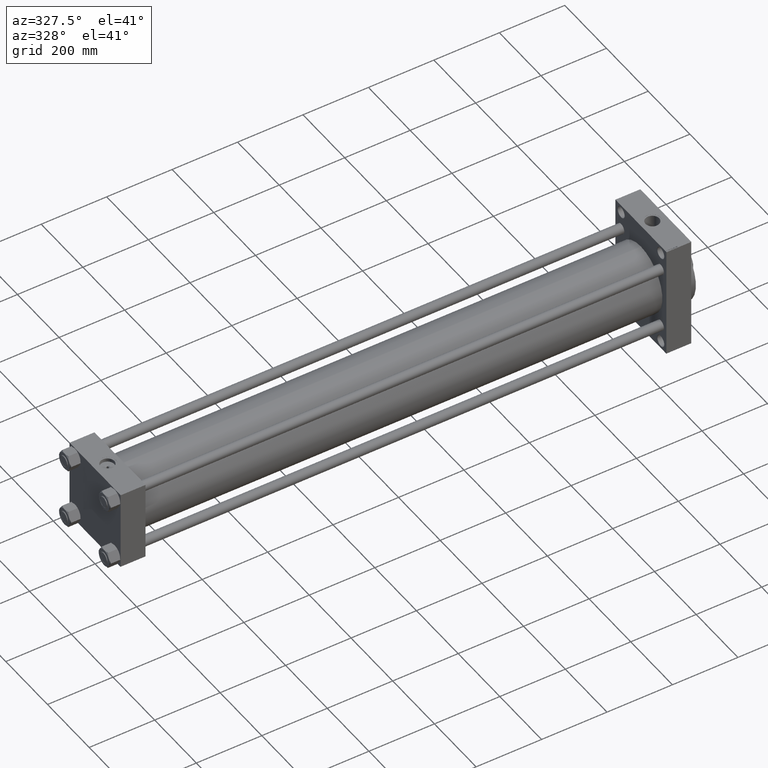
[diagram: clean part render]
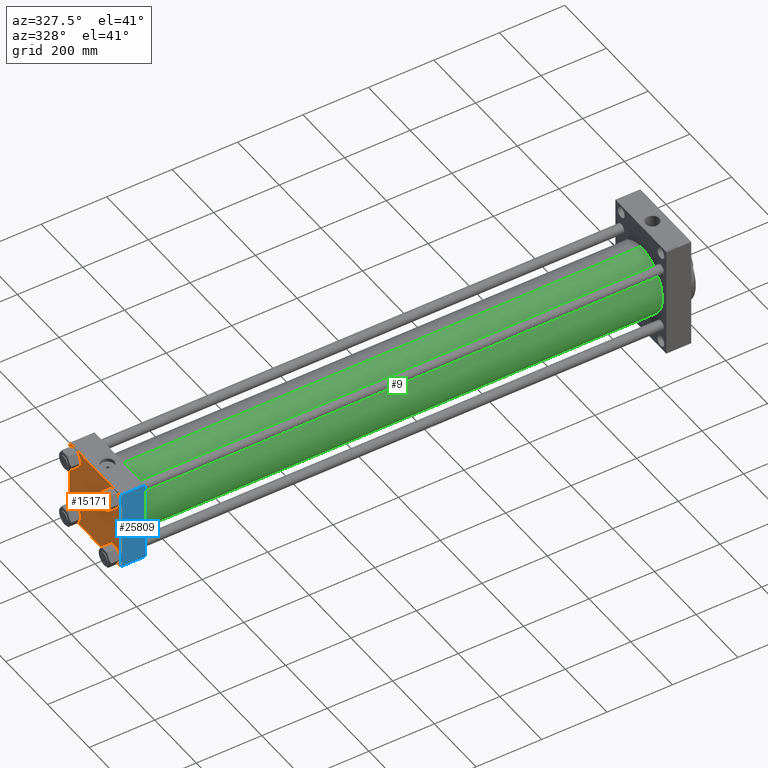
[diagram: same view with three faces highlighted in distinct colors, each labeled with its STEP entity id]
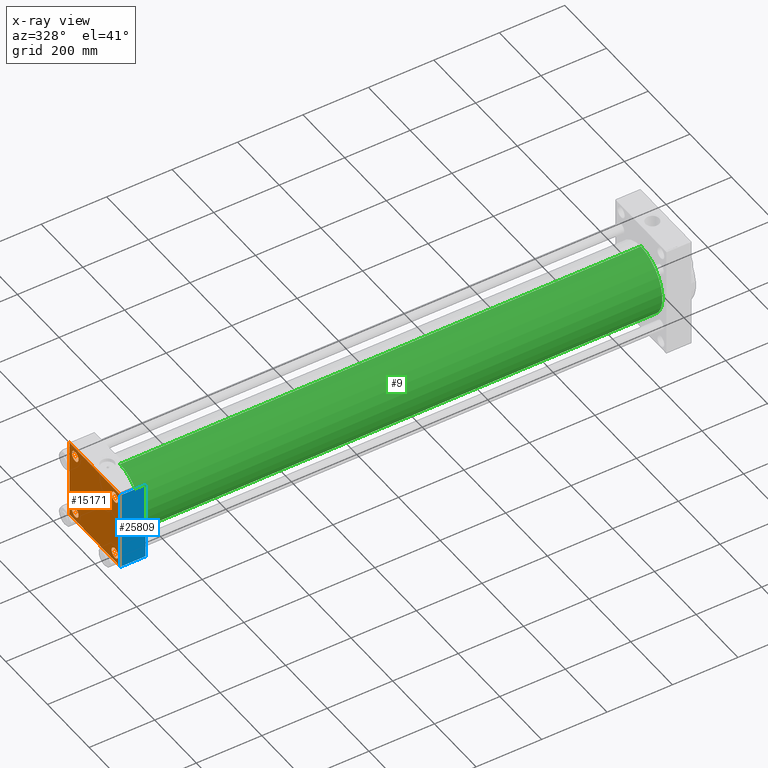
[diagram: x-ray of the same camera — body ghosted, the three highlighted faces saturated]
A machine part, auxiliary view with three faces highlighted in distinct colors.
The next image is the same camera in x-ray (body ghosted, the three faces saturated) — at least one of them is partly hidden behind the body in this view.
Their STEP definitions:

[orange] entity #15171 — the highlighted planar face has unit normal (-1, 0, 0).
#151 = LINE ( 'NONE', #36749, #24370 ) ;
#465 = LINE ( 'NONE', #40938, #46264 ) ;
#717 = VERTEX_POINT ( 'NONE', #37382 ) ;
#1149 = VERTEX_POINT ( 'NONE', #42062 ) ;
#1669 = CARTESIAN_POINT ( 'NONE',  ( 0.000000000000000000, -95.09999999999996589, -110.6000000000000654 ) ) ;
#2927 = VECTOR ( 'NONE', #7510, 1000.000000000000114 ) ;
#3022 = EDGE_CURVE ( 'NONE', #717, #14227, #25157, .T. ) ;
#3164 = CIRCLE ( 'NONE', #46230, 15.50000000000001421 ) ;
#4239 = CARTESIAN_POINT ( 'NONE',  ( 0.000000000000000000, 122.0000000000000568, -122.5000000000000000 ) ) ;
#4588 = EDGE_CURVE ( 'NONE', #46541, #45904, #25804, .T. ) ;
#4685 = AXIS2_PLACEMENT_3D ( 'NONE', #45766, #5322, #27925 ) ;
#5322 = DIRECTION ( 'NONE',  ( -1.000000000000000000, 0.000000000000000000, 0.000000000000000000 ) ) ;
#6135 = CARTESIAN_POINT ( 'NONE',  ( 0.000000000000000000, -95.09999999999996589, -95.10000000000005116 ) ) ;
#6230 = ORIENTED_EDGE ( 'NONE', *, *, #45724, .F. ) ;
#6291 = EDGE_LOOP ( 'NONE', ( #9970, #26909 ) ) ;
#6487 = DIRECTION ( 'NONE',  ( 1.000000000000000000, -0.000000000000000000, -0.000000000000000000 ) ) ;
#6859 = EDGE_CURVE ( 'NONE', #22710, #46541, #10113, .T. ) ;
#6986 = CARTESIAN_POINT ( 'NONE',  ( 0.000000000000000000, 122.0000000000000568, 122.5000000000000284 ) ) ;
#7070 = AXIS2_PLACEMENT_3D ( 'NONE', #29288, #11221, #33385 ) ;
#7156 = AXIS2_PLACEMENT_3D ( 'NONE', #6135, #34550, #20332 ) ;
#7162 = VERTEX_POINT ( 'NONE', #38197 ) ;
#7436 = CARTESIAN_POINT ( 'NONE',  ( 0.000000000000000000, 122.2499999999932641, 122.2500000000068496 ) ) ;
#7458 = CARTESIAN_POINT ( 'NONE',  ( 0.000000000000000000, 95.09999999999999432, 95.10000000000002274 ) ) ;
#7510 = DIRECTION ( 'NONE',  ( 0.000000000000000000, -0.7071067811865474617, 0.7071067811865474617 ) ) ;
#7914 = EDGE_LOOP ( 'NONE', ( #25883, #21727, #30379, #33745, #19858, #39428, #6230, #34213 ) ) ;
#8219 = CARTESIAN_POINT ( 'NONE',  ( 0.000000000000000000, -122.0000000000000000, -122.5000000000000568 ) ) ;
#9378 = DIRECTION ( 'NONE',  ( 1.000000000000000000, -0.000000000000000000, -0.000000000000000000 ) ) ;
#9612 = CARTESIAN_POINT ( 'NONE',  ( 0.000000000000000000, 95.09999999999999432, -95.10000000000002274 ) ) ;
#9931 = VECTOR ( 'NONE', #32720, 1000.000000000000000 ) ;
#9960 = CARTESIAN_POINT ( 'NONE',  ( 0.000000000000000000, 95.09999999999999432, 110.6000000000000369 ) ) ;
#9970 = ORIENTED_EDGE ( 'NONE', *, *, #13606, .T. ) ;
#10113 = LINE ( 'NONE', #13474, #36801 ) ;
#10138 = EDGE_LOOP ( 'NONE', ( #34825, #44495 ) ) ;
#10932 = CARTESIAN_POINT ( 'NONE',  ( 0.000000000000000000, -95.09999999999996589, -79.60000000000003695 ) ) ;
#11221 = DIRECTION ( 'NONE',  ( 1.000000000000000000, -0.000000000000000000, -0.000000000000000000 ) ) ;
#12085 = DIRECTION ( 'NONE',  ( 0.000000000000000000, 0.000000000000000000, -1.000000000000000000 ) ) ;
#12649 = CARTESIAN_POINT ( 'NONE',  ( 0.000000000000000000, 122.5000000000000568, 122.0000000000000853 ) ) ;
#13261 = EDGE_CURVE ( 'NONE', #37899, #44663, #3164, .T. ) ;
#13383 = DIRECTION ( 'NONE',  ( 0.000000000000000000, 0.000000000000000000, 1.000000000000000000 ) ) ;
#13474 = CARTESIAN_POINT ( 'NONE',  ( 0.000000000000000000, 122.5000000000000568, -122.5000000000000000 ) ) ;
#13606 = EDGE_CURVE ( 'NONE', #44663, #37899, #31547, .T. ) ;
#13742 = VECTOR ( 'NONE', #42436, 1000.000000000000114 ) ;
#13858 = EDGE_CURVE ( 'NONE', #26291, #22710, #18382, .T. ) ;
#13876 = AXIS2_PLACEMENT_3D ( 'NONE', #39626, #46849, #13383 ) ;
#14010 = CARTESIAN_POINT ( 'NONE',  ( 0.000000000000000000, -95.09999999999996589, 79.60000000000003695 ) ) ;
#14227 = VERTEX_POINT ( 'NONE', #14010 ) ;
#14672 = ORIENTED_EDGE ( 'NONE', *, *, #34462, .T. ) ;
#14676 = DIRECTION ( 'NONE',  ( 0.000000000000000000, -1.132880637372608493E-16, -1.000000000000000000 ) ) ;
#15171 = ADVANCED_FACE ( 'NONE', ( #23853, #34451, #34917, #31080, #24090 ), #30606, .T. ) ;
#15686 = LINE ( 'NONE', #23871, #26246 ) ;
#16691 = AXIS2_PLACEMENT_3D ( 'NONE', #32947, #29338, #17776 ) ;
#17776 = DIRECTION ( 'NONE',  ( 0.000000000000000000, 0.000000000000000000, 1.000000000000000000 ) ) ;
#17896 = CIRCLE ( 'NONE', #7156, 15.50000000000001421 ) ;
#18090 = EDGE_CURVE ( 'NONE', #36911, #40891, #17896, .T. ) ;
#18366 = ORIENTED_EDGE ( 'NONE', *, *, #18090, .T. ) ;
#18382 = LINE ( 'NONE', #46829, #23848 ) ;
#18921 = CARTESIAN_POINT ( 'NONE',  ( 0.000000000000000000, -122.5000000000000000, -122.0000000000000568 ) ) ;
#18975 = LINE ( 'NONE', #7436, #9931 ) ;
#19858 = ORIENTED_EDGE ( 'NONE', *, *, #29473, .F. ) ;
#20332 = DIRECTION ( 'NONE',  ( 0.000000000000000000, 0.000000000000000000, 1.000000000000000000 ) ) ;
#21056 = VERTEX_POINT ( 'NONE', #6986 ) ;
#21727 = ORIENTED_EDGE ( 'NONE', *, *, #13858, .T. ) ;
#21870 = AXIS2_PLACEMENT_3D ( 'NONE', #7458, #40450, #32516 ) ;
#22356 = EDGE_CURVE ( 'NONE', #31576, #1149, #43380, .T. ) ;
#22710 = VERTEX_POINT ( 'NONE', #4239 ) ;
#23848 = VECTOR ( 'NONE', #32838, 1000.000000000000114 ) ;
#23853 = FACE_BOUND ( 'NONE', #10138, .T. ) ;
#23871 = CARTESIAN_POINT ( 'NONE',  ( 0.000000000000000000, 122.5000000000000568, 122.5000000000000284 ) ) ;
#24090 = FACE_OUTER_BOUND ( 'NONE', #7914, .T. ) ;
#24185 = DIRECTION ( 'NONE',  ( 1.000000000000000000, -0.000000000000000000, -0.000000000000000000 ) ) ;
#24218 = EDGE_CURVE ( 'NONE', #21056, #36769, #18975, .T. ) ;
#24370 = VECTOR ( 'NONE', #40371, 1000.000000000000000 ) ;
#24791 = DIRECTION ( 'NONE',  ( 0.000000000000000000, -1.000000000000000000, -2.265761274745216987E-16 ) ) ;
#25063 = CARTESIAN_POINT ( 'NONE',  ( 0.000000000000000000, -122.2499999999932641, 122.2500000000068212 ) ) ;
#25157 = CIRCLE ( 'NONE', #16691, 15.50000000000001421 ) ;
#25804 = LINE ( 'NONE', #40502, #2927 ) ;
#25883 = ORIENTED_EDGE ( 'NONE', *, *, #29285, .T. ) ;
#26246 = VECTOR ( 'NONE', #12085, 1000.000000000000000 ) ;
#26291 = VERTEX_POINT ( 'NONE', #33148 ) ;
#26909 = ORIENTED_EDGE ( 'NONE', *, *, #13261, .T. ) ;
#27444 = EDGE_CURVE ( 'NONE', #40891, #36911, #28485, .T. ) ;
#27903 = DIRECTION ( 'NONE',  ( 0.000000000000000000, 0.000000000000000000, 1.000000000000000000 ) ) ;
#27925 = DIRECTION ( 'NONE',  ( 0.000000000000000000, 0.000000000000000000, 1.000000000000000000 ) ) ;
#28485 = CIRCLE ( 'NONE', #13876, 15.50000000000001421 ) ;
#29285 = EDGE_CURVE ( 'NONE', #36769, #26291, #15686, .T. ) ;
#29288 = CARTESIAN_POINT ( 'NONE',  ( 0.000000000000000000, -95.09999999999996589, 95.10000000000005116 ) ) ;
#29338 = DIRECTION ( 'NONE',  ( 1.000000000000000000, -0.000000000000000000, -0.000000000000000000 ) ) ;
#29473 = EDGE_CURVE ( 'NONE', #31576, #45904, #465, .T. ) ;
#30108 = CARTESIAN_POINT ( 'NONE',  ( 0.000000000000000000, 95.09999999999999432, -79.60000000000000853 ) ) ;
#30379 = ORIENTED_EDGE ( 'NONE', *, *, #6859, .T. ) ;
#30606 = PLANE ( 'NONE',  #4685 ) ;
#30898 = CIRCLE ( 'NONE', #7070, 15.50000000000001421 ) ;
#31080 = FACE_BOUND ( 'NONE', #41960, .T. ) ;
#31547 = CIRCLE ( 'NONE', #43180, 15.50000000000001421 ) ;
#31576 = VERTEX_POINT ( 'NONE', #47169 ) ;
#31772 = DIRECTION ( 'NONE',  ( 0.000000000000000000, 0.000000000000000000, 1.000000000000000000 ) ) ;
#32516 = DIRECTION ( 'NONE',  ( 0.000000000000000000, 0.000000000000000000, 1.000000000000000000 ) ) ;
#32615 = CARTESIAN_POINT ( 'NONE',  ( 0.000000000000000000, 95.09999999999999432, -110.6000000000000369 ) ) ;
#32720 = DIRECTION ( 'NONE',  ( 0.000000000000000000, 0.7071067811865868746, -0.7071067811865081598 ) ) ;
#32838 = DIRECTION ( 'NONE',  ( -0.000000000000000000, -0.7071067811865474617, -0.7071067811865474617 ) ) ;
#32947 = CARTESIAN_POINT ( 'NONE',  ( 0.000000000000000000, -95.09999999999996589, 95.10000000000005116 ) ) ;
#33148 = CARTESIAN_POINT ( 'NONE',  ( 0.000000000000000000, 122.5000000000000568, -121.9999999999999432 ) ) ;
#33385 = DIRECTION ( 'NONE',  ( 0.000000000000000000, 0.000000000000000000, 1.000000000000000000 ) ) ;
#33662 = EDGE_CURVE ( 'NONE', #14227, #717, #30898, .T. ) ;
#33745 = ORIENTED_EDGE ( 'NONE', *, *, #4588, .T. ) ;
#34213 = ORIENTED_EDGE ( 'NONE', *, *, #24218, .T. ) ;
#34451 = FACE_BOUND ( 'NONE', #35387, .T. ) ;
#34462 = EDGE_CURVE ( 'NONE', #44075, #7162, #41701, .T. ) ;
#34550 = DIRECTION ( 'NONE',  ( 1.000000000000000000, -0.000000000000000000, -0.000000000000000000 ) ) ;
#34825 = ORIENTED_EDGE ( 'NONE', *, *, #3022, .T. ) ;
#34917 = FACE_BOUND ( 'NONE', #6291, .T. ) ;
#35387 = EDGE_LOOP ( 'NONE', ( #18366, #44018 ) ) ;
#36749 = CARTESIAN_POINT ( 'NONE',  ( 0.000000000000000000, 122.5000000000000568, 122.5000000000000284 ) ) ;
#36769 = VERTEX_POINT ( 'NONE', #12649 ) ;
#36801 = VECTOR ( 'NONE', #24791, 1000.000000000000000 ) ;
#36911 = VERTEX_POINT ( 'NONE', #10932 ) ;
#37382 = CARTESIAN_POINT ( 'NONE',  ( 0.000000000000000000, -95.09999999999996589, 110.6000000000000654 ) ) ;
#37899 = VERTEX_POINT ( 'NONE', #32615 ) ;
#38197 = CARTESIAN_POINT ( 'NONE',  ( 0.000000000000000000, 95.09999999999999432, 79.60000000000000853 ) ) ;
#39428 = ORIENTED_EDGE ( 'NONE', *, *, #22356, .T. ) ;
#39481 = CARTESIAN_POINT ( 'NONE',  ( 0.000000000000000000, 95.09999999999999432, 95.10000000000002274 ) ) ;
#39626 = CARTESIAN_POINT ( 'NONE',  ( 0.000000000000000000, -95.09999999999996589, -95.10000000000005116 ) ) ;
#40010 = EDGE_CURVE ( 'NONE', #7162, #44075, #41108, .T. ) ;
#40356 = ORIENTED_EDGE ( 'NONE', *, *, #40010, .T. ) ;
#40371 = DIRECTION ( 'NONE',  ( 0.000000000000000000, -1.000000000000000000, -1.132880637372608740E-16 ) ) ;
#40450 = DIRECTION ( 'NONE',  ( 1.000000000000000000, -0.000000000000000000, -0.000000000000000000 ) ) ;
#40502 = CARTESIAN_POINT ( 'NONE',  ( 0.000000000000000000, -122.2500000000000142, -122.2500000000000142 ) ) ;
#40891 = VERTEX_POINT ( 'NONE', #1669 ) ;
#40938 = CARTESIAN_POINT ( 'NONE',  ( 0.000000000000000000, -122.4999999999999716, 122.5000000000000000 ) ) ;
#41108 = CIRCLE ( 'NONE', #21870, 15.50000000000001421 ) ;
#41701 = CIRCLE ( 'NONE', #41737, 15.50000000000001421 ) ;
#41737 = AXIS2_PLACEMENT_3D ( 'NONE', #39481, #6487, #27903 ) ;
#41960 = EDGE_LOOP ( 'NONE', ( #14672, #40356 ) ) ;
#42062 = CARTESIAN_POINT ( 'NONE',  ( 0.000000000000000000, -121.9999999999999716, 122.5000000000000000 ) ) ;
#42436 = DIRECTION ( 'NONE',  ( -0.000000000000000000, 0.7071067811865867636, 0.7071067811865082708 ) ) ;
#43180 = AXIS2_PLACEMENT_3D ( 'NONE', #9612, #9378, #31772 ) ;
#43380 = LINE ( 'NONE', #25063, #13742 ) ;
#44018 = ORIENTED_EDGE ( 'NONE', *, *, #27444, .T. ) ;
#44075 = VERTEX_POINT ( 'NONE', #9960 ) ;
#44495 = ORIENTED_EDGE ( 'NONE', *, *, #33662, .T. ) ;
#44663 = VERTEX_POINT ( 'NONE', #30108 ) ;
#45724 = EDGE_CURVE ( 'NONE', #21056, #1149, #151, .T. ) ;
#45766 = CARTESIAN_POINT ( 'NONE',  ( 0.000000000000000000, 0.000000000000000000, 0.000000000000000000 ) ) ;
#45904 = VERTEX_POINT ( 'NONE', #18921 ) ;
#46098 = CARTESIAN_POINT ( 'NONE',  ( 0.000000000000000000, 95.09999999999999432, -95.10000000000002274 ) ) ;
#46230 = AXIS2_PLACEMENT_3D ( 'NONE', #46098, #24185, #46346 ) ;
#46264 = VECTOR ( 'NONE', #14676, 1000.000000000000000 ) ;
#46346 = DIRECTION ( 'NONE',  ( 0.000000000000000000, 0.000000000000000000, 1.000000000000000000 ) ) ;
#46541 = VERTEX_POINT ( 'NONE', #8219 ) ;
#46829 = CARTESIAN_POINT ( 'NONE',  ( 0.000000000000000000, 122.2500000000000142, -122.2500000000000142 ) ) ;
#46849 = DIRECTION ( 'NONE',  ( 1.000000000000000000, -0.000000000000000000, -0.000000000000000000 ) ) ;
#47169 = CARTESIAN_POINT ( 'NONE',  ( 0.000000000000000000, -122.4999999999999716, 122.0000000000001137 ) ) ;

[blue] entity #25809 — the highlighted planar face has unit normal (0, 1, -0).
#465 = LINE ( 'NONE', #40938, #46264 ) ;
#1704 = CARTESIAN_POINT ( 'NONE',  ( 76.00000000000000000, -122.4999999999999716, 122.5000000000000000 ) ) ;
#5509 = CARTESIAN_POINT ( 'NONE',  ( 76.00000000000000000, -122.4999999999999716, 122.0000000000001137 ) ) ;
#8054 = EDGE_CURVE ( 'NONE', #45963, #31576, #8868, .T. ) ;
#8077 = ORIENTED_EDGE ( 'NONE', *, *, #35386, .T. ) ;
#8694 = DIRECTION ( 'NONE',  ( 0.000000000000000000, 1.132880637372608493E-16, 1.000000000000000000 ) ) ;
#8868 = LINE ( 'NONE', #5509, #46093 ) ;
#9394 = DIRECTION ( 'NONE',  ( 0.000000000000000000, 1.000000000000000000, -1.132880637372608493E-16 ) ) ;
#10446 = EDGE_LOOP ( 'NONE', ( #37269, #8077, #17012, #31173 ) ) ;
#12302 = AXIS2_PLACEMENT_3D ( 'NONE', #1704, #9394, #8694 ) ;
#14058 = VERTEX_POINT ( 'NONE', #34967 ) ;
#14676 = DIRECTION ( 'NONE',  ( 0.000000000000000000, -1.132880637372608493E-16, -1.000000000000000000 ) ) ;
#15577 = VECTOR ( 'NONE', #26925, 1000.000000000000000 ) ;
#17012 = ORIENTED_EDGE ( 'NONE', *, *, #31497, .F. ) ;
#18921 = CARTESIAN_POINT ( 'NONE',  ( 0.000000000000000000, -122.5000000000000000, -122.0000000000000568 ) ) ;
#25809 = ADVANCED_FACE ( 'NONE', ( #30602 ), #34448, .F. ) ;
#26925 = DIRECTION ( 'NONE',  ( 1.000000000000000000, 0.000000000000000000, 0.000000000000000000 ) ) ;
#28620 = LINE ( 'NONE', #42369, #33123 ) ;
#29473 = EDGE_CURVE ( 'NONE', #31576, #45904, #465, .T. ) ;
#30602 = FACE_OUTER_BOUND ( 'NONE', #10446, .T. ) ;
#31173 = ORIENTED_EDGE ( 'NONE', *, *, #8054, .T. ) ;
#31495 = DIRECTION ( 'NONE',  ( -1.000000000000000000, 0.000000000000000000, 0.000000000000000000 ) ) ;
#31497 = EDGE_CURVE ( 'NONE', #45963, #14058, #28620, .T. ) ;
#31576 = VERTEX_POINT ( 'NONE', #47169 ) ;
#33123 = VECTOR ( 'NONE', #35370, 1000.000000000000000 ) ;
#34153 = LINE ( 'NONE', #41144, #15577 ) ;
#34448 = PLANE ( 'NONE',  #12302 ) ;
#34967 = CARTESIAN_POINT ( 'NONE',  ( 76.00000000000000000, -122.5000000000000000, -122.0000000000000568 ) ) ;
#35370 = DIRECTION ( 'NONE',  ( 0.000000000000000000, -1.132880637372608493E-16, -1.000000000000000000 ) ) ;
#35386 = EDGE_CURVE ( 'NONE', #45904, #14058, #34153, .T. ) ;
#37269 = ORIENTED_EDGE ( 'NONE', *, *, #29473, .T. ) ;
#40938 = CARTESIAN_POINT ( 'NONE',  ( 0.000000000000000000, -122.4999999999999716, 122.5000000000000000 ) ) ;
#41144 = CARTESIAN_POINT ( 'NONE',  ( 76.00000000000000000, -122.5000000000000000, -122.0000000000000568 ) ) ;
#41812 = CARTESIAN_POINT ( 'NONE',  ( 76.00000000000000000, -122.4999999999999716, 122.0000000000001137 ) ) ;
#42369 = CARTESIAN_POINT ( 'NONE',  ( 76.00000000000000000, -122.4999999999999716, 122.5000000000000000 ) ) ;
#45904 = VERTEX_POINT ( 'NONE', #18921 ) ;
#45963 = VERTEX_POINT ( 'NONE', #41812 ) ;
#46093 = VECTOR ( 'NONE', #31495, 1000.000000000000000 ) ;
#46264 = VECTOR ( 'NONE', #14676, 1000.000000000000000 ) ;
#47169 = CARTESIAN_POINT ( 'NONE',  ( 0.000000000000000000, -122.4999999999999716, 122.0000000000001137 ) ) ;

[green] entity #9 — the highlighted cylindrical surface (partial cylindrical patch) has radius 103 mm, axis along (-1, -0, -0).
#9 = ADVANCED_FACE ( 'NONE', ( #10308 ), #10081, .T. ) ;
#1435 = EDGE_CURVE ( 'NONE', #34173, #3545, #4231, .T. ) ;
#3545 = VERTEX_POINT ( 'NONE', #31138 ) ;
#3569 = VECTOR ( 'NONE', #7838, 1000.000000000000000 ) ;
#3834 = CARTESIAN_POINT ( 'NONE',  ( 1668.000000000000227, -2.602085213965210642E-15, 0.000000000000000000 ) ) ;
#4231 = LINE ( 'NONE', #30939, #3569 ) ;
#4788 = ORIENTED_EDGE ( 'NONE', *, *, #24468, .T. ) ;
#6691 = CARTESIAN_POINT ( 'NONE',  ( 1668.000000000000227, -2.602085213965210642E-15, 0.000000000000000000 ) ) ;
#7010 = CARTESIAN_POINT ( 'NONE',  ( 1668.000000000000227, -2.602085213965210642E-15, 103.0000000000000000 ) ) ;
#7654 = CIRCLE ( 'NONE', #44582, 103.0000000000000000 ) ;
#7838 = DIRECTION ( 'NONE',  ( -1.000000000000000000, -0.000000000000000000, -0.000000000000000000 ) ) ;
#8028 = VERTEX_POINT ( 'NONE', #23329 ) ;
#8819 = DIRECTION ( 'NONE',  ( 1.000000000000000000, 0.000000000000000000, 0.000000000000000000 ) ) ;
#9236 = CARTESIAN_POINT ( 'NONE',  ( 76.00000000000007105, 1.001177681725252697E-14, -103.0000000000000000 ) ) ;
#10081 = CYLINDRICAL_SURFACE ( 'NONE', #42875, 103.0000000000000000 ) ;
#10308 = FACE_OUTER_BOUND ( 'NONE', #30272, .T. ) ;
#12355 = ORIENTED_EDGE ( 'NONE', *, *, #31718, .F. ) ;
#12693 = DIRECTION ( 'NONE',  ( -1.000000000000000000, -0.000000000000000000, -0.000000000000000000 ) ) ;
#13668 = DIRECTION ( 'NONE',  ( 0.000000000000000000, 0.000000000000000000, 1.000000000000000000 ) ) ;
#16775 = ORIENTED_EDGE ( 'NONE', *, *, #38578, .F. ) ;
#17235 = CIRCLE ( 'NONE', #26449, 103.0000000000000000 ) ;
#17731 = CARTESIAN_POINT ( 'NONE',  ( 76.00000000000007105, -2.602085213965210642E-15, 0.000000000000000000 ) ) ;
#20796 = ORIENTED_EDGE ( 'NONE', *, *, #1435, .T. ) ;
#21891 = DIRECTION ( 'NONE',  ( 0.000000000000000000, 0.000000000000000000, -1.000000000000000000 ) ) ;
#23329 = CARTESIAN_POINT ( 'NONE',  ( 1668.000000000000227, 1.001177681725252697E-14, -103.0000000000000000 ) ) ;
#24468 = EDGE_CURVE ( 'NONE', #3545, #28916, #7654, .T. ) ;
#26449 = AXIS2_PLACEMENT_3D ( 'NONE', #3834, #8819, #21891 ) ;
#28551 = VECTOR ( 'NONE', #12693, 1000.000000000000000 ) ;
#28916 = VERTEX_POINT ( 'NONE', #9236 ) ;
#30272 = EDGE_LOOP ( 'NONE', ( #12355, #16775, #20796, #4788 ) ) ;
#30939 = CARTESIAN_POINT ( 'NONE',  ( 1668.000000000000227, -2.602085213965210642E-15, 103.0000000000000000 ) ) ;
#31138 = CARTESIAN_POINT ( 'NONE',  ( 76.00000000000007105, -2.602085213965210642E-15, 103.0000000000000000 ) ) ;
#31718 = EDGE_CURVE ( 'NONE', #8028, #28916, #45223, .T. ) ;
#34173 = VERTEX_POINT ( 'NONE', #7010 ) ;
#38578 = EDGE_CURVE ( 'NONE', #34173, #8028, #17235, .T. ) ;
#42577 = DIRECTION ( 'NONE',  ( 1.000000000000000000, -0.000000000000000000, -0.000000000000000000 ) ) ;
#42830 = DIRECTION ( 'NONE',  ( -1.000000000000000000, -0.000000000000000000, -0.000000000000000000 ) ) ;
#42875 = AXIS2_PLACEMENT_3D ( 'NONE', #6691, #42830, #46197 ) ;
#44582 = AXIS2_PLACEMENT_3D ( 'NONE', #17731, #42577, #13668 ) ;
#45223 = LINE ( 'NONE', #45462, #28551 ) ;
#45462 = CARTESIAN_POINT ( 'NONE',  ( 1668.000000000000227, 1.001177681725252697E-14, -103.0000000000000000 ) ) ;
#46197 = DIRECTION ( 'NONE',  ( 0.000000000000000000, 0.000000000000000000, 1.000000000000000000 ) ) ;